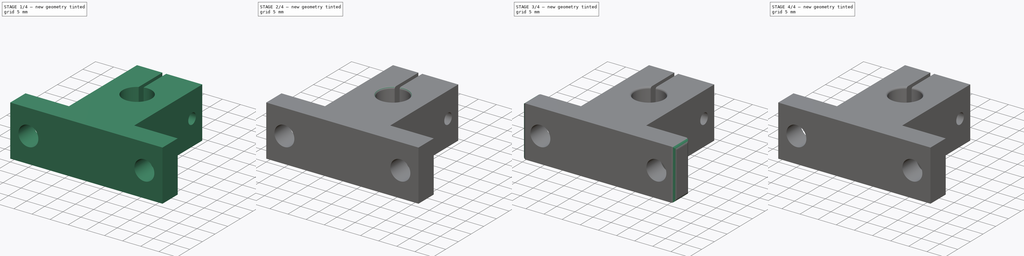
[diagram: build sequence overview — one tinted view per stage of 4, left to right]
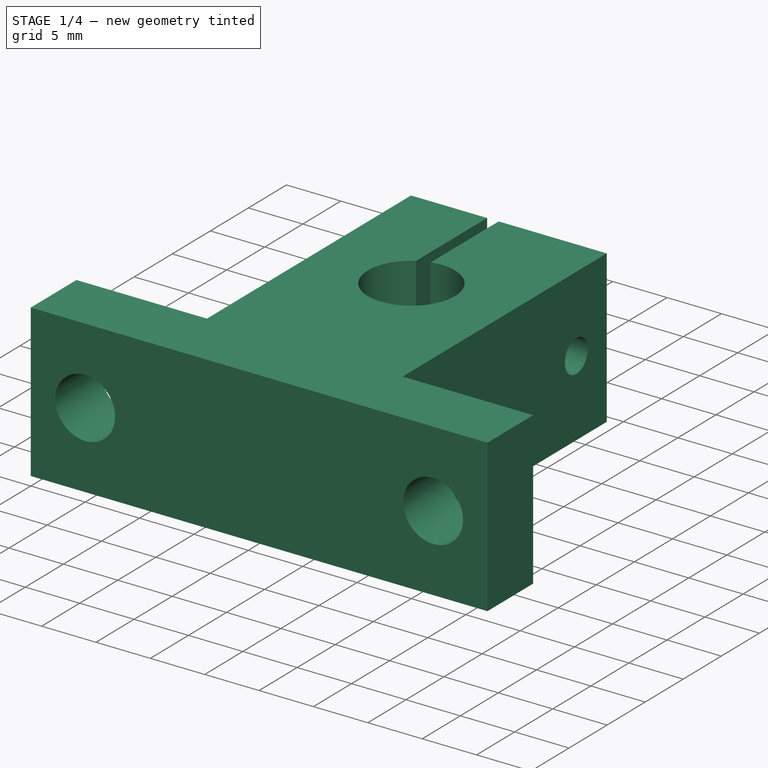
[diagram: stage 1 of 4 — iso view after this stage's code; geometry added in this stage tinted green]
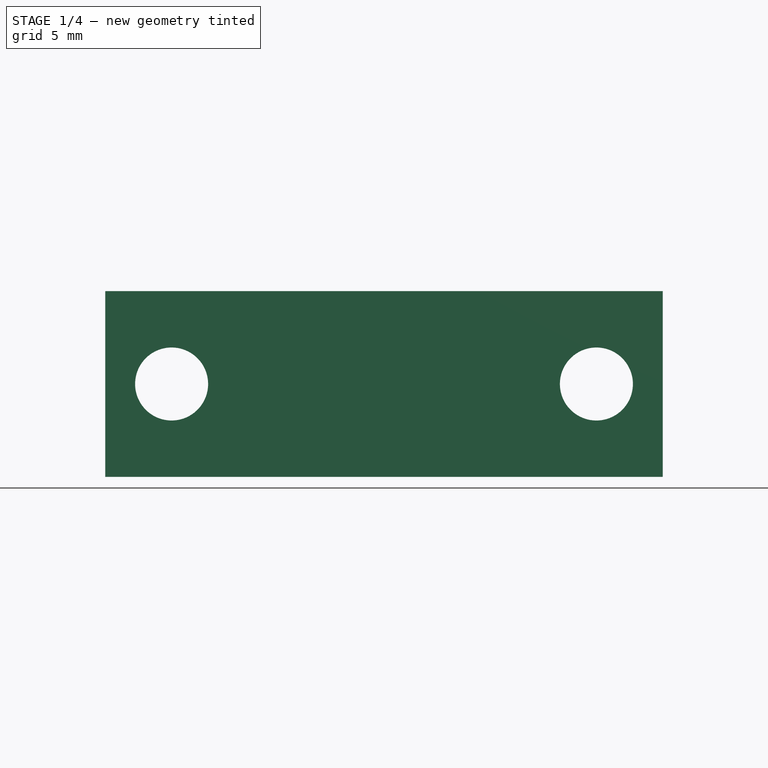
[diagram: stage 1 of 4 — front view after this stage's code; geometry added in this stage tinted green]
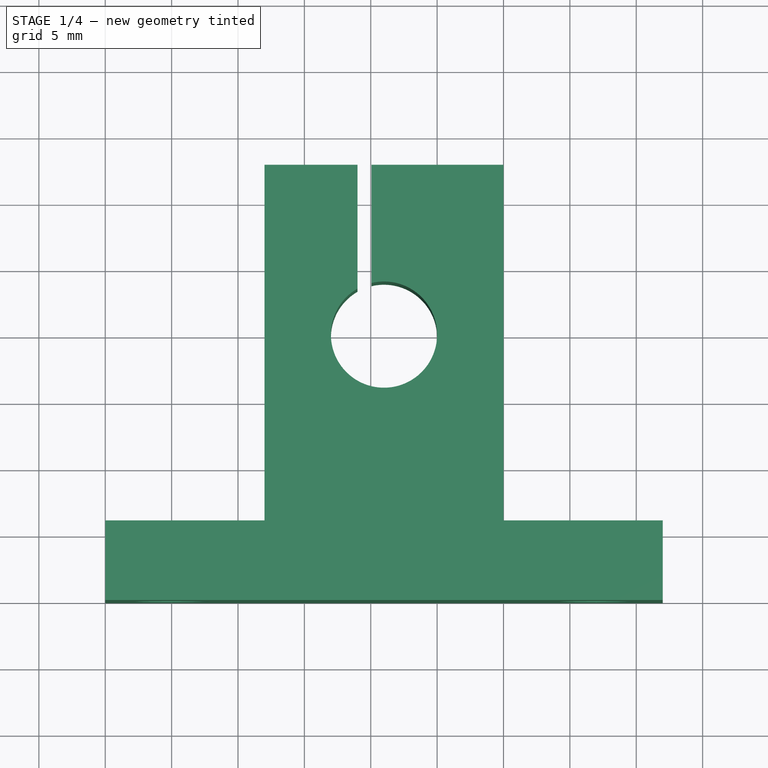
[diagram: stage 1 of 4 — top view after this stage's code; geometry added in this stage tinted green]
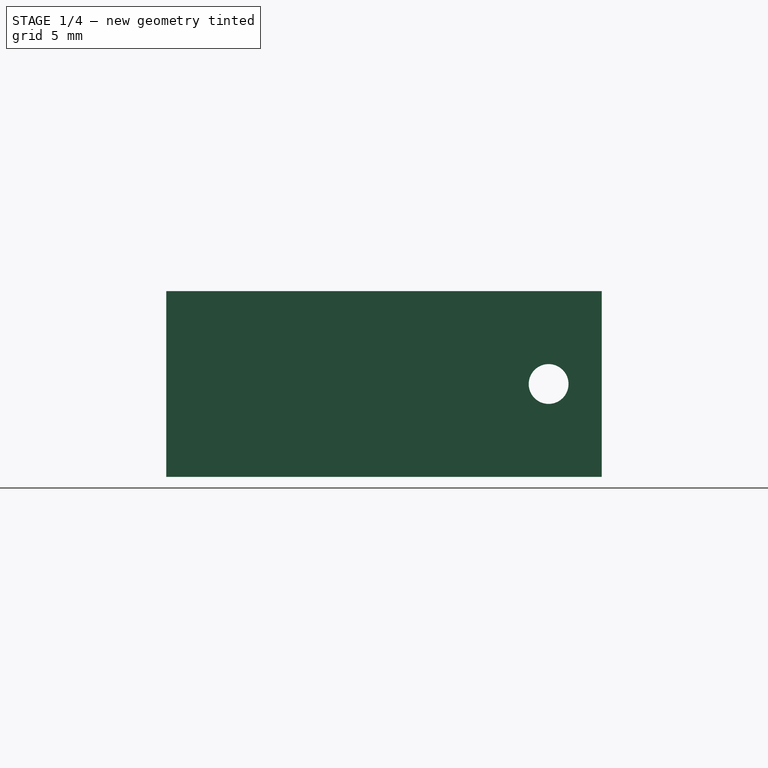
[diagram: stage 1 of 4 — right view after this stage's code; geometry added in this stage tinted green]
FCSTD DOCUMENT  (FreeCAD 0.16R6707 (Git))
Label: Linear Rail Shaft Guide 8mm
License: CC-BY 3.0
LicenseURL: http://creativecommons.org/licenses/by/3.0/
objects: PartDesign::Fillet×9, Sketcher::SketchObject×5, PartDesign::Pocket×4, PartDesign::Pad×1
note: 24 computed .brp shape members not serialized (recipe doc carries the construction recipe); baked Part::Feature solids carry a one-line shape summary decoded from their .brp

FEATURE [Sketcher::SketchObject] Sketch
  sketch-geometry (9):
    g0: LineSegment StartX=0 StartY=0 StartZ=0 EndX=0 EndY=6 EndZ=0
    g1: LineSegment StartX=0 StartY=6 StartZ=0 EndX=12 EndY=6 EndZ=0
    g2: LineSegment StartX=12 StartY=6 StartZ=0 EndX=12 EndY=32.8 EndZ=0
    g3: LineSegment StartX=12 StartY=32.8 StartZ=0 EndX=30 EndY=32.8 EndZ=0
    g4: LineSegment StartX=30 StartY=32.8 StartZ=0 EndX=30 EndY=6 EndZ=0
    g5: LineSegment StartX=30 StartY=6 StartZ=0 EndX=42 EndY=6 EndZ=0
    g6: LineSegment StartX=42 StartY=6 StartZ=0 EndX=42 EndY=0 EndZ=0
    g7: LineSegment StartX=42 StartY=0 StartZ=0 EndX=0 EndY=0 EndZ=0
    g8: Circle CenterX=21 CenterY=20 CenterZ=0 NormalX=0 NormalY=0 NormalZ=1 Radius=4
  constraints (27):
    c: PointOnObject(g0,g-2)
    c: Vertical(g0)
    c: Coincident(g0,g1)
    c: Horizontal(g1)
    c: Coincident(g1,g2)
    c: Vertical(g2)
    c: Coincident(g2,g3)
    c: Horizontal(g3)
    c: Coincident(g3,g4)
    c: Vertical(g4)
    c: Coincident(g4,g5)
    c: Horizontal(g5)
    c: Coincident(g5,g6)
    c: PointOnObject(g6,g-1)
    c: Coincident(g6,g7)
    c: Coincident(g0,g7)
    c: Coincident(g0,g-1)
    c: Equal(g0,g6)
    c: Equal(g1,g5)
    c: Equal(g2,g4)
    c: DistanceX(g7) = -42
    c: DistanceY(g0) = 6
    c: DistanceX(g3) = 18
    c: Radius(g8) = 4
    c: DistanceX(g8,g0) = -21
    c: DistanceY(g8,g6) = -20
    c: DistanceY(g3,g6) = -32.8
FEATURE [PartDesign::Pad] Pad
  Length = 14
  Length2 = 100
  Sketch = -> Sketch
  Type = 0
FEATURE [Sketcher::SketchObject] Sketch001
  Placement = pos=(0,0,0) rot=(1,0,0;1.5708rad)
  Support = -> Pad [Face8]
  sketch-geometry (3):
    g0: LineSegment [constr] StartX=5 StartY=7 StartZ=0 EndX=37 EndY=7 EndZ=0
    g1: Circle CenterX=5 CenterY=7 CenterZ=0 NormalX=0 NormalY=0 NormalZ=1 Radius=2.75
    g2: Circle CenterX=37 CenterY=7 CenterZ=0 NormalX=0 NormalY=0 NormalZ=1 Radius=2.75
  constraints (8):
    c: Horizontal(g0)
    c: DistanceY(g-1,g0) = 7
    c: DistanceX(g0) = 32
    c: DistanceX(g-1,g0) = 5
    c: Coincident(g1,g0)
    c: Coincident(g2,g0)
    c: Equal(g2,g1)
    c: Radius(g2) = 2.75
FEATURE [PartDesign::Pocket] Pocket
  Length = 5
  Sketch = -> Sketch001
  Type = 1
FEATURE [Sketcher::SketchObject] Sketch002
  ExternalGeometry = -> [Pocket]
  Placement = pos=(0,0,14) rot=(0,0,1;0rad)
  Support = -> Pocket [Face5]
  sketch-geometry (4):
    g0: LineSegment StartX=19 StartY=34.4733 StartZ=0 EndX=20.06 EndY=34.4733 EndZ=0
    g1: LineSegment StartX=20.06 StartY=34.4733 StartZ=0 EndX=20.06 EndY=22.3788 EndZ=0
    g2: LineSegment StartX=20.06 StartY=22.3788 StartZ=0 EndX=19 EndY=22.3788 EndZ=0
    g3: LineSegment StartX=19 StartY=22.3788 StartZ=0 EndX=19 EndY=34.4733 EndZ=0
  constraints (12):
    c: Coincident(g0,g1)
    c: Coincident(g1,g2)
    c: Coincident(g2,g3)
    c: Coincident(g3,g0)
    c: Horizontal(g0)
    c: Horizontal(g2)
    c: Vertical(g1)
    c: Vertical(g3)
    c: DistanceX(g-3,g0) = 7
    c: Equal(g0,g2)
    c: Equal(g3,g1)
    c: DistanceX(g0) = 1.06
FEATURE [PartDesign::Pocket] Pocket001
  Length = 5
  Sketch = -> Sketch002
  Type = 1
FEATURE [Sketcher::SketchObject] Sketch003
  ExternalGeometry = -> [Pocket001]
  Placement = pos=(12,0,0) rot=(0.57735,-0.57735,-0.57735;2.0944rad)
  Support = -> Pocket001 [Face9]
  sketch-geometry (1):
    g0: Circle CenterX=-28.8 CenterY=7 CenterZ=0 NormalX=0 NormalY=0 NormalZ=1 Radius=1.5
  constraints (3):
    c: DistanceY(g-1,g0) = 7
    c: Radius(g0) = 1.5
    c: Distance(g0,g-3) = 4
FEATURE [PartDesign::Pocket] Pocket002
  Length = 5
  Sketch = -> Sketch003
  Type = 1
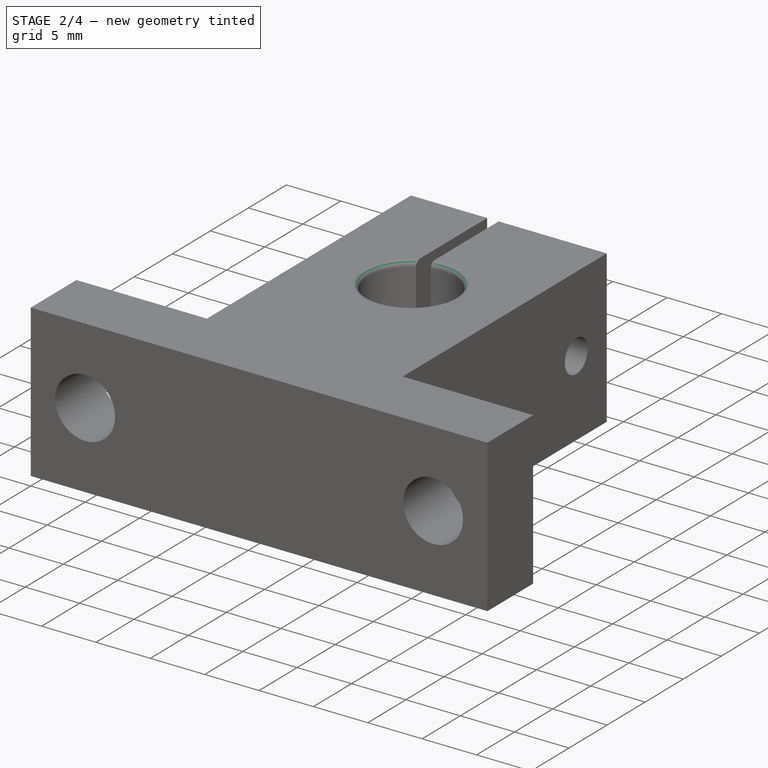
[diagram: stage 2 of 4 — iso view after this stage's code; geometry added in this stage tinted green]
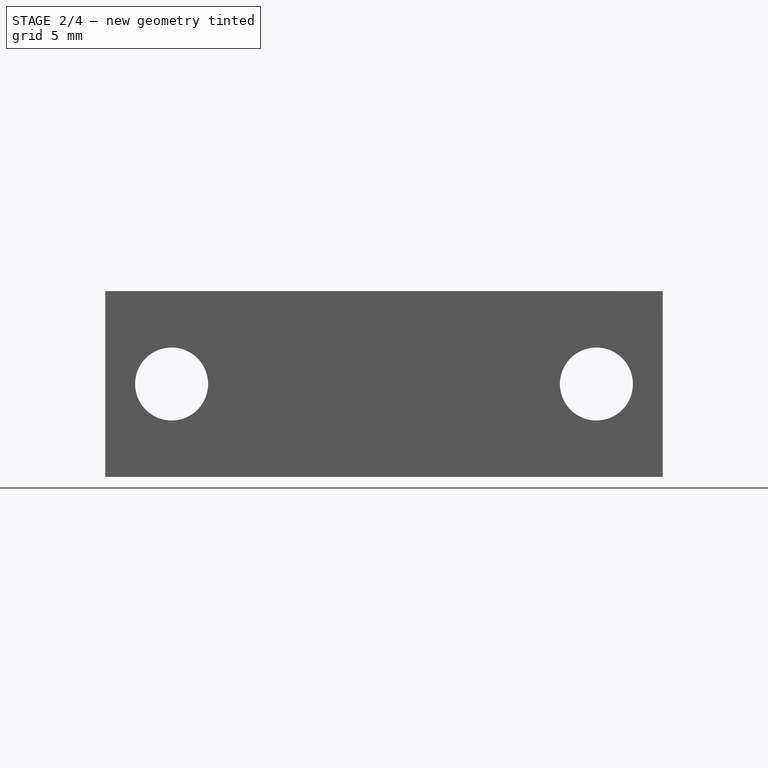
[diagram: stage 2 of 4 — front view after this stage's code; geometry added in this stage tinted green]
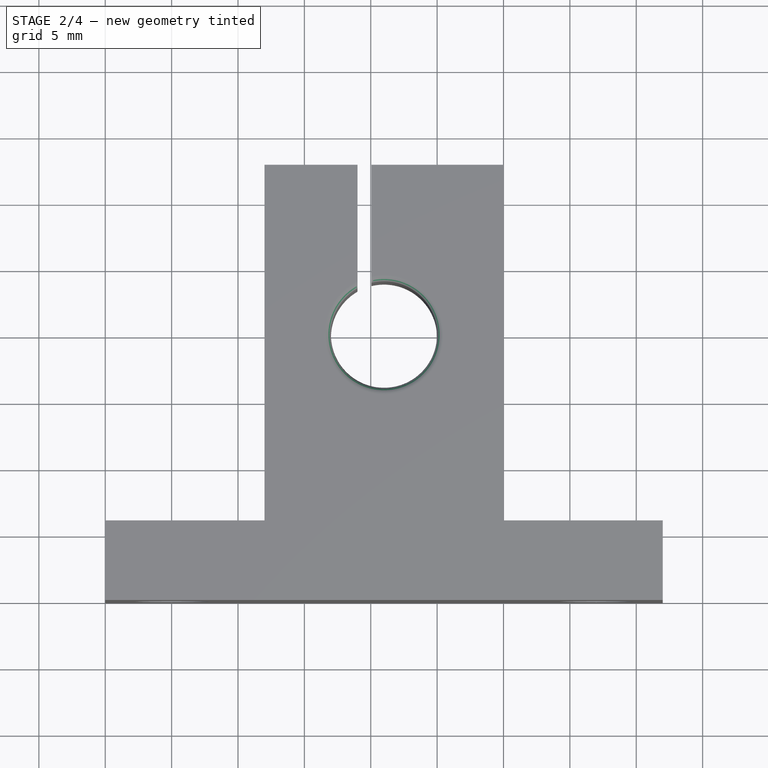
[diagram: stage 2 of 4 — top view after this stage's code; geometry added in this stage tinted green]
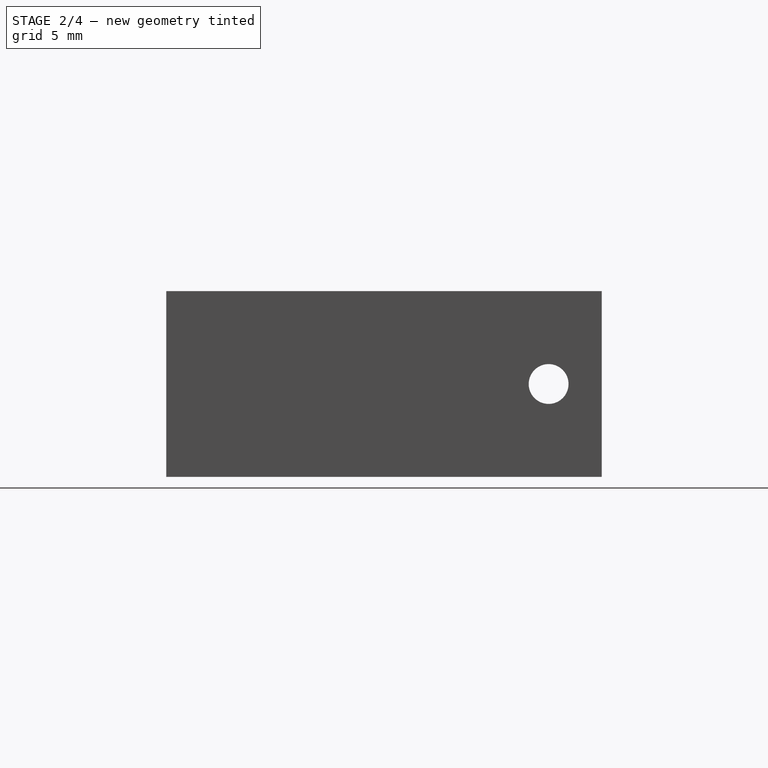
[diagram: stage 2 of 4 — right view after this stage's code; geometry added in this stage tinted green]
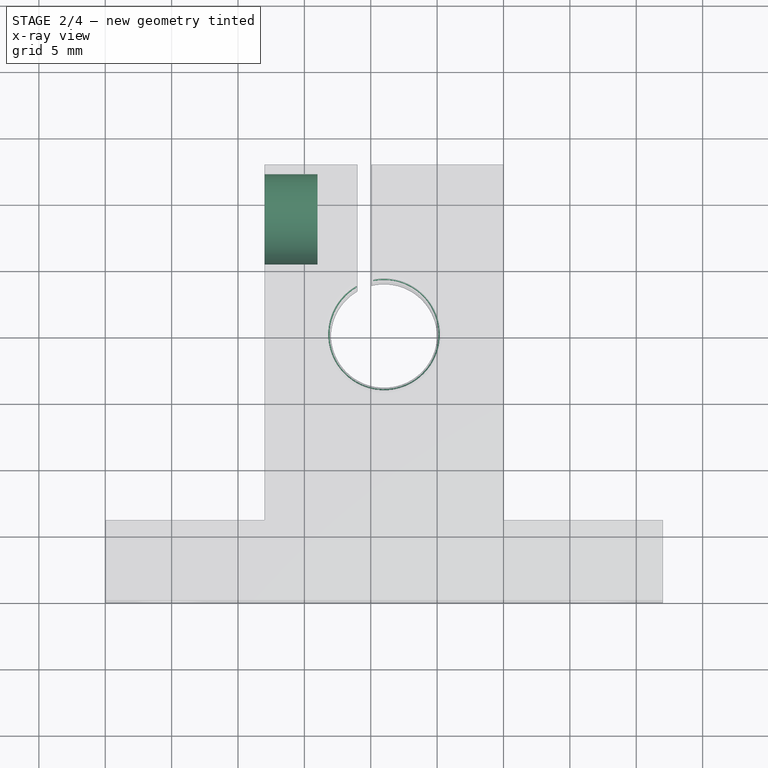
[diagram: stage 2 of 4 — x-ray composite at the top view; earlier geometry ghosted, this stage's added geometry solid]
FEATURE [Sketcher::SketchObject] Sketch004
  ExternalGeometry = -> [Pocket002]
  Placement = pos=(12,0,0) rot=(0.57735,-0.57735,-0.57735;2.0944rad)
  Support = -> Pocket002 [Face9]
  sketch-geometry (1):
    g0: Circle CenterX=-28.8 CenterY=7 CenterZ=0 NormalX=0 NormalY=0 NormalZ=1 Radius=3.4
  constraints (3):
    c: Distance(g0,g-3) = 4
    c: DistanceY(g0,g-3) = -7
    c: Radius(g0) = 3.4
FEATURE [PartDesign::Pocket] Pocket003
  Length = 4
  Sketch = -> Sketch004
  Type = 0
FEATURE [PartDesign::Fillet] Fillet
  Base = -> Pocket003 [Edge28,Edge29]
  Radius = 0.5
FEATURE [PartDesign::Fillet] Fillet001
  Base = -> Fillet [Edge57]
  Radius = 0.5
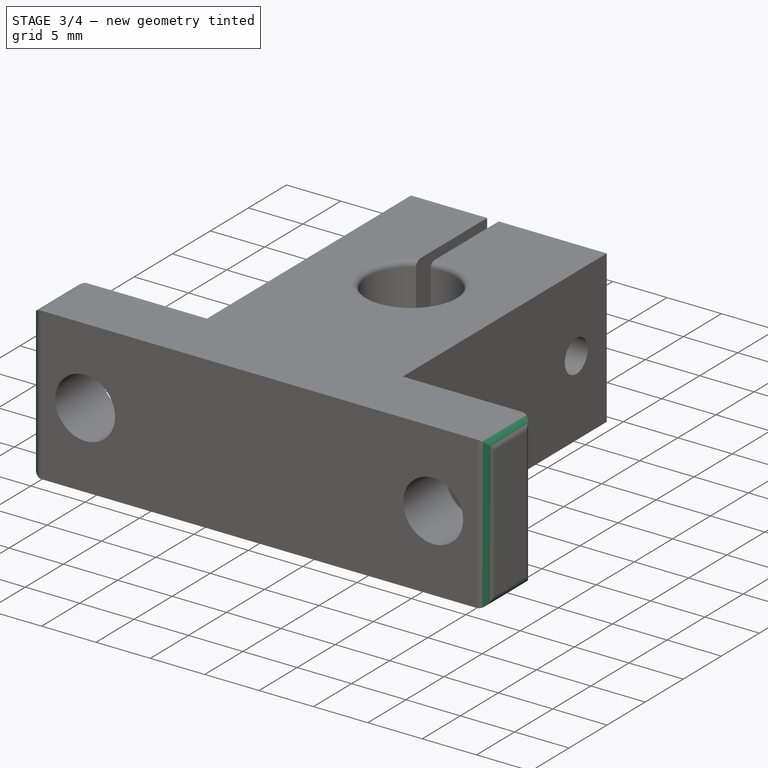
[diagram: stage 3 of 4 — iso view after this stage's code; geometry added in this stage tinted green]
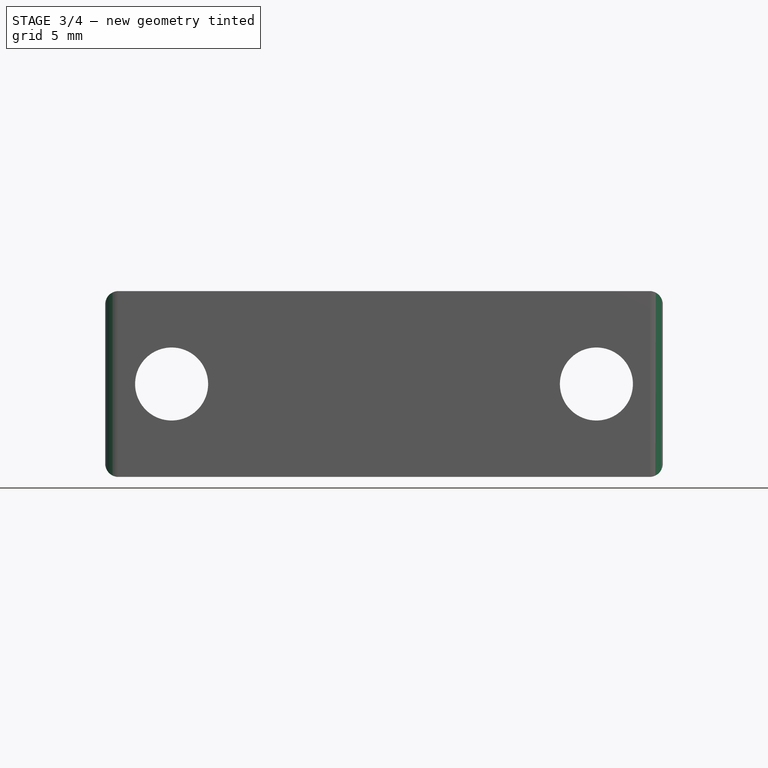
[diagram: stage 3 of 4 — front view after this stage's code; geometry added in this stage tinted green]
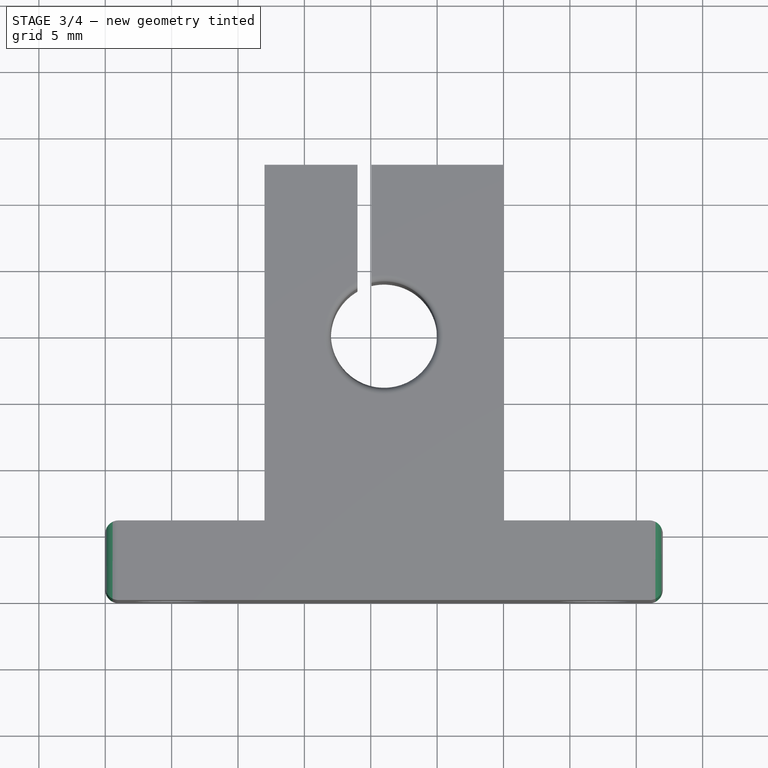
[diagram: stage 3 of 4 — top view after this stage's code; geometry added in this stage tinted green]
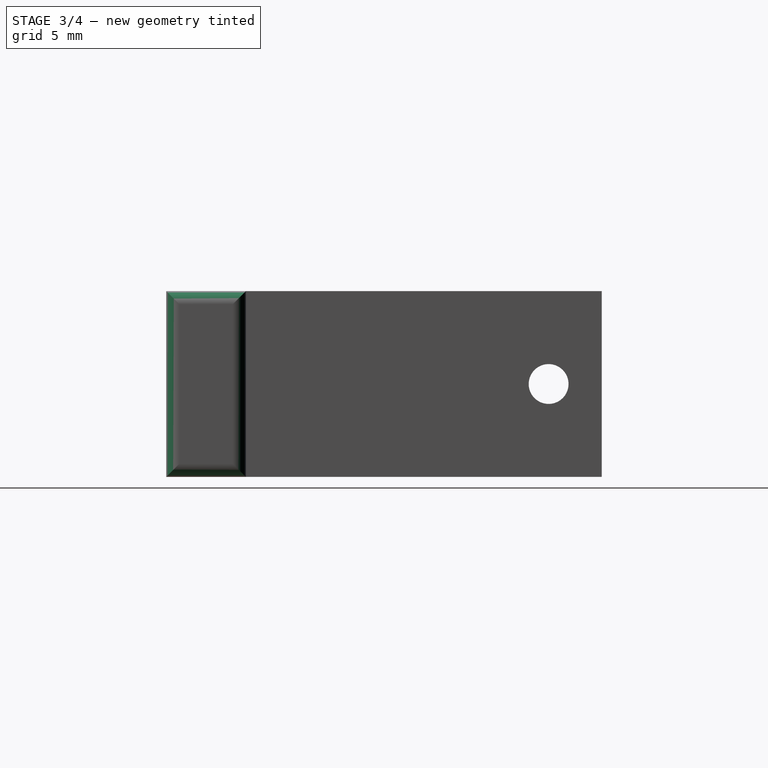
[diagram: stage 3 of 4 — right view after this stage's code; geometry added in this stage tinted green]
FEATURE [PartDesign::Fillet] Fillet002
  Base = -> Fillet001 [Edge64,Edge63]
  Radius = 0.5
FEATURE [PartDesign::Fillet] Fillet004
  Base = -> Fillet002 [Edge6,Edge38,Edge26,Edge37]
  Radius = 1
FEATURE [PartDesign::Fillet] Fillet005
  Base = -> Fillet004 [Edge42,Edge47,Edge9,Edge28]
  Radius = 1
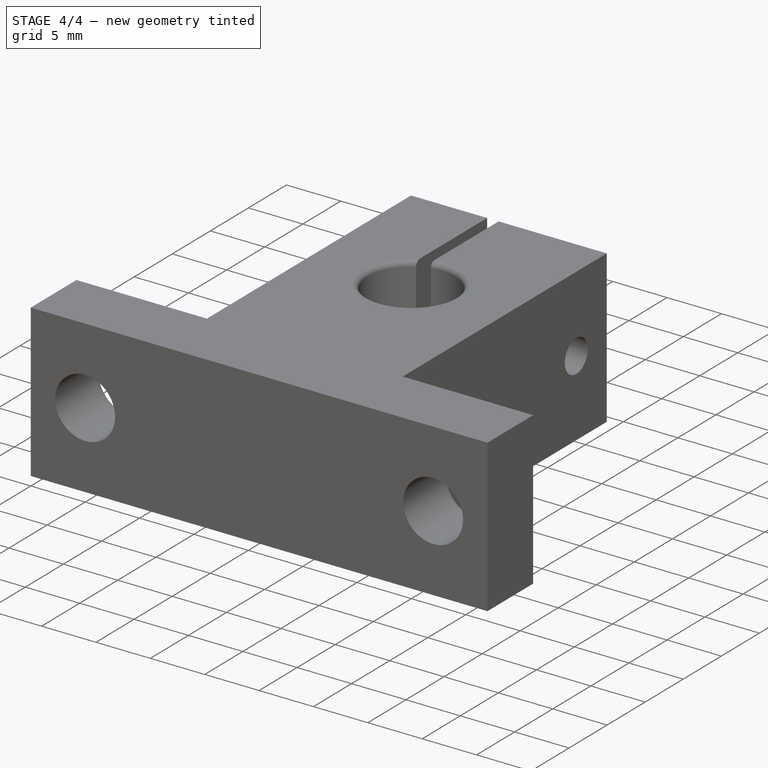
[diagram: stage 4 of 4 — iso view after this stage's code; geometry added in this stage tinted green]
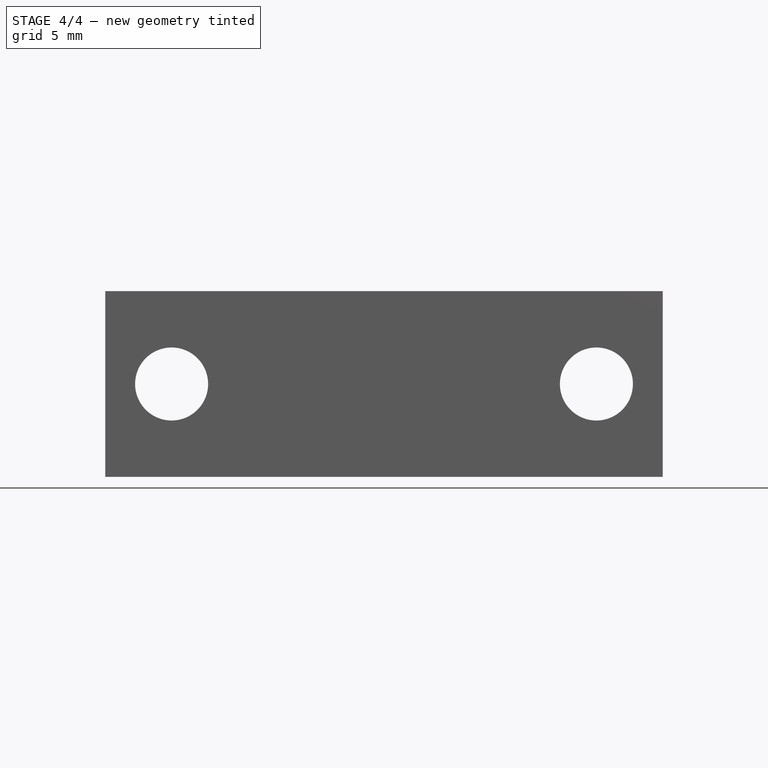
[diagram: stage 4 of 4 — front view after this stage's code; geometry added in this stage tinted green]
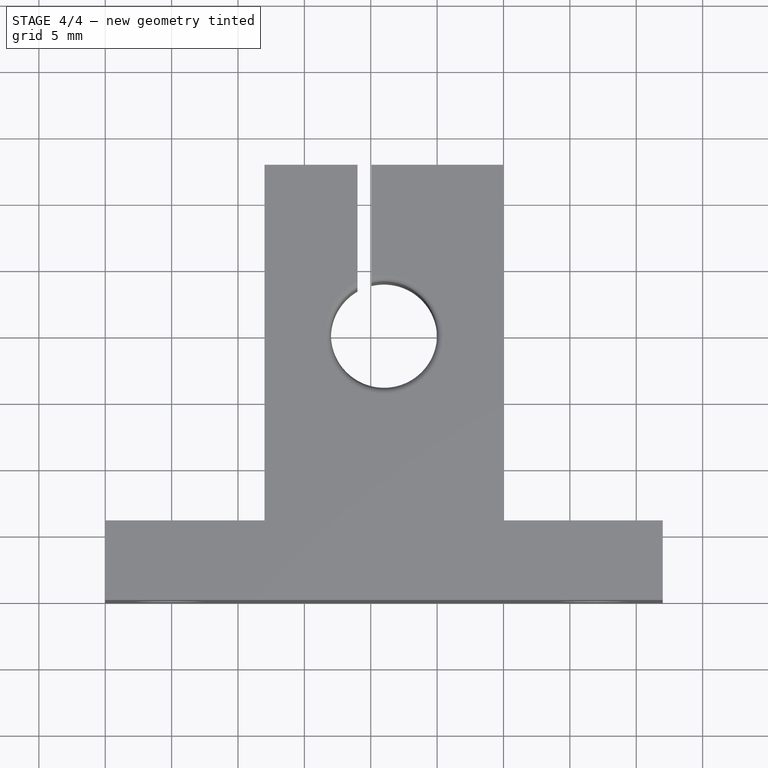
[diagram: stage 4 of 4 — top view after this stage's code; geometry added in this stage tinted green]
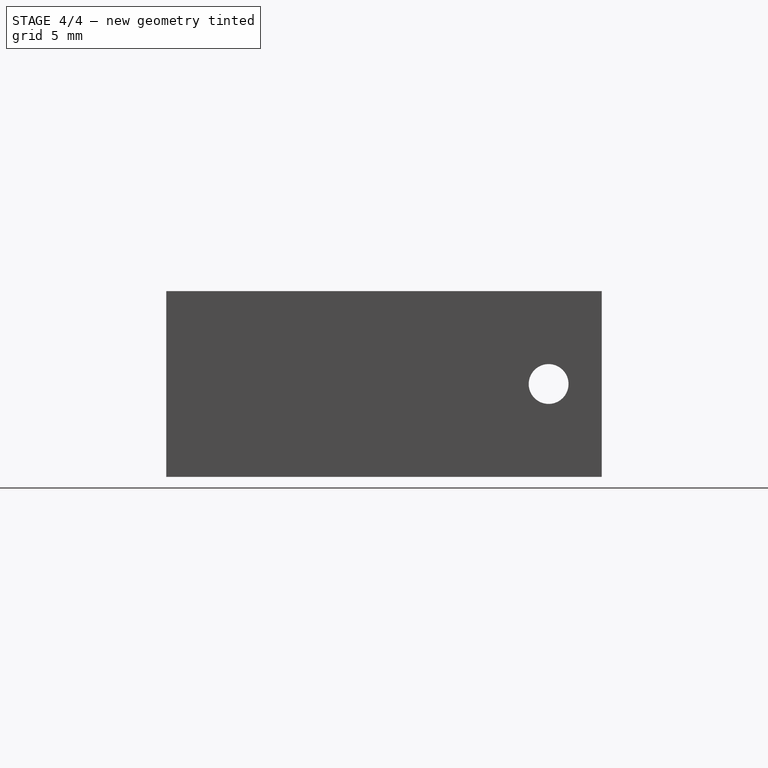
[diagram: stage 4 of 4 — right view after this stage's code; geometry added in this stage tinted green]
FEATURE [PartDesign::Fillet] Fillet003
  Base = -> Fillet002 [Edge61,Edge60]
  Radius = 0.5
FEATURE [PartDesign::Fillet] Fillet006
  Base = -> Fillet005 [Edge40]
  Radius = 1
FEATURE [PartDesign::Fillet] Fillet007
  Base = -> Fillet006 [Edge62]
  Radius = 1
FEATURE [PartDesign::Fillet] Fillet008
  Base = -> Fillet007 [Edge27,Edge26]
  Radius = 0.5
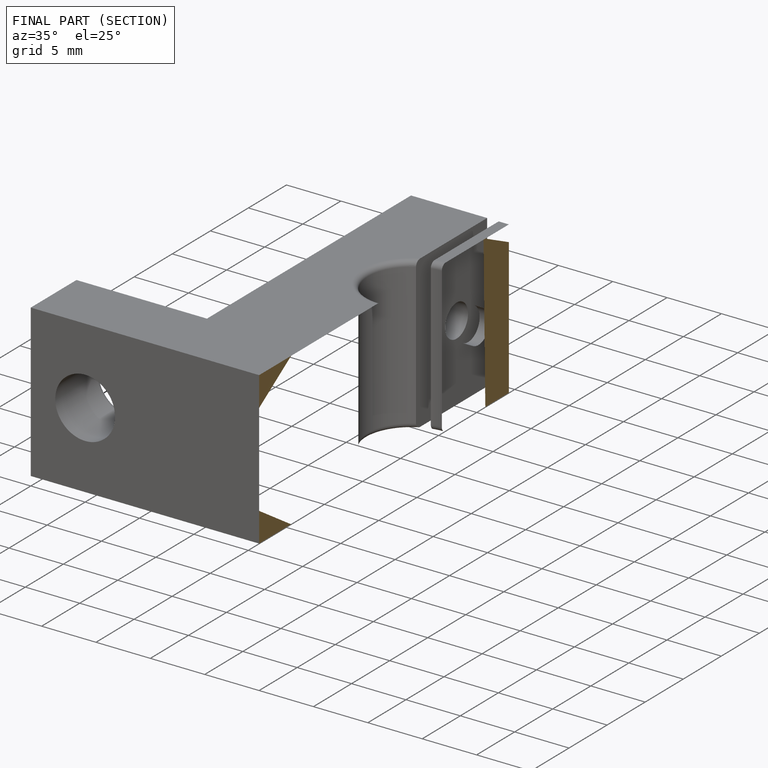
[diagram: finished part — half-section view (interior)]
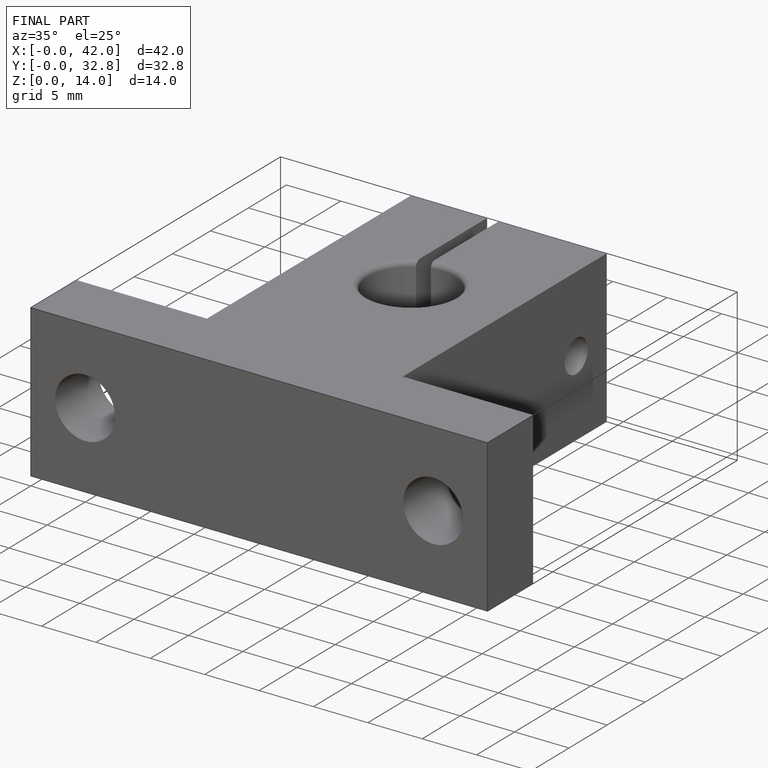
[diagram: finished part — iso view with bounding-box wireframe]
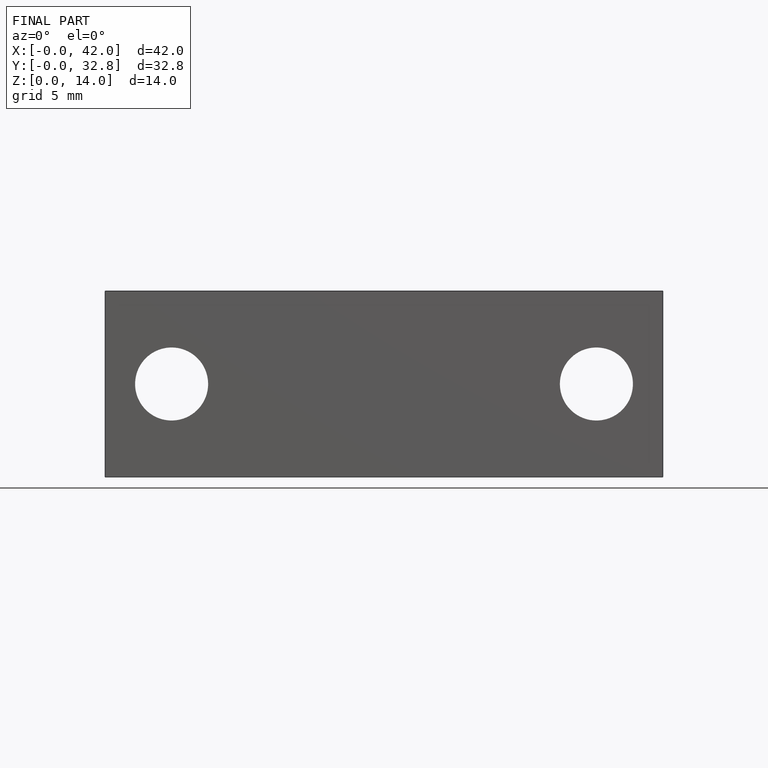
[diagram: finished part — front view with bounding-box wireframe]
